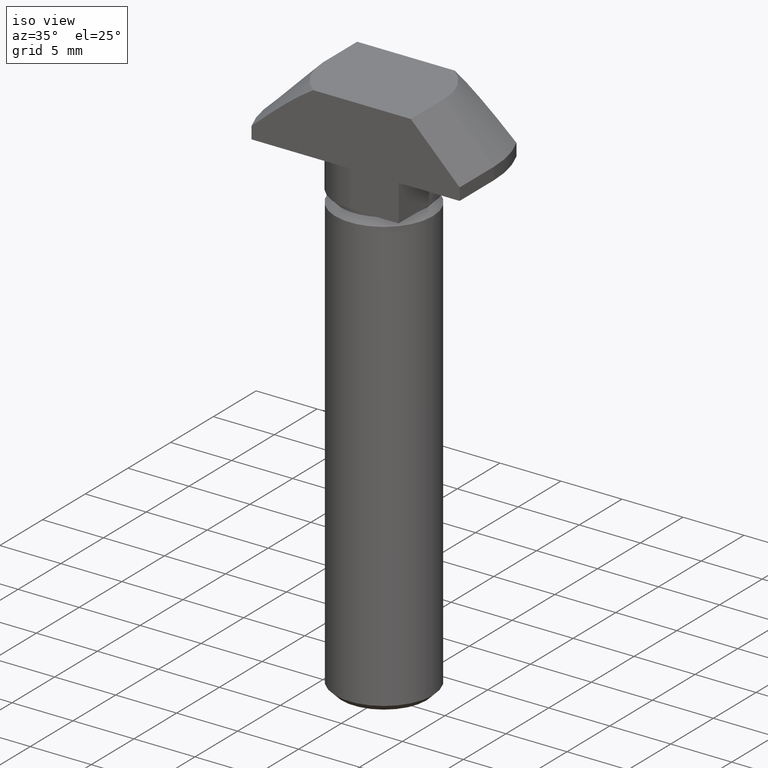
[diagram: clean part render]
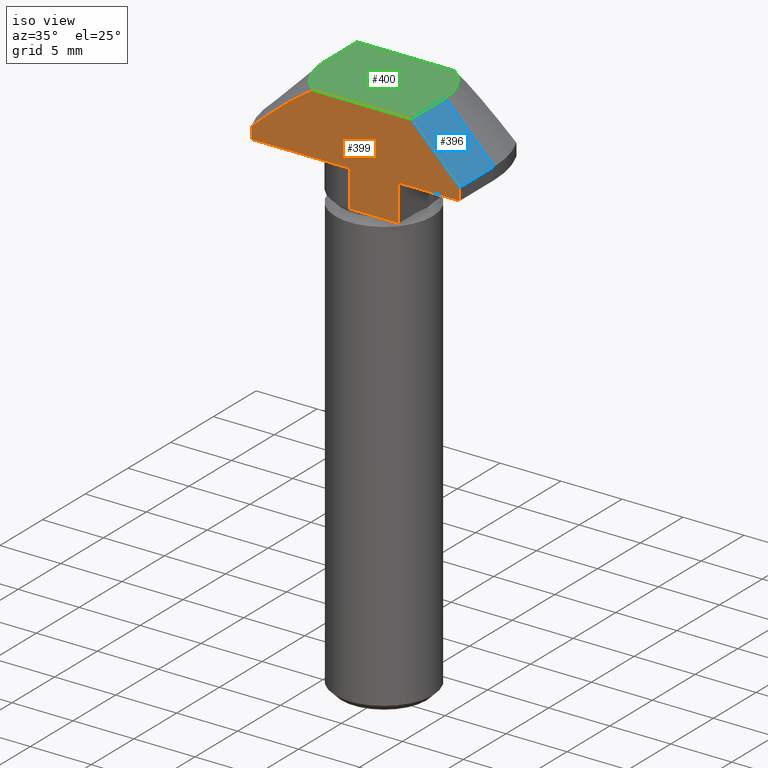
[diagram: same view with three faces highlighted in distinct colors, each labeled with its STEP entity id]
A machine part, iso view with three faces highlighted in distinct colors.
Their STEP definitions:

[orange] entity #399 — the highlighted planar face has unit normal (0, -1, 0).
#16=(
BOUNDED_CURVE()
B_SPLINE_CURVE(2,(#670,#671,#672),.UNSPECIFIED.,.F.,.F.)
B_SPLINE_CURVE_WITH_KNOTS((3,3),(0.,0.645810133031388),.UNSPECIFIED.)
CURVE()
GEOMETRIC_REPRESENTATION_ITEM()
RATIONAL_B_SPLINE_CURVE((1.,1.07257323111155,1.))
REPRESENTATION_ITEM('')
);
#28=PLANE('',#460);
#57=FACE_OUTER_BOUND('',#81,.T.);
#81=EDGE_LOOP('',(#349,#350,#351,#352,#353,#354,#355,#356,#357,#358));
#92=LINE('',#613,#130);
#94=LINE('',#619,#132);
#99=LINE('',#631,#137);
#100=LINE('',#634,#138);
#105=LINE('',#647,#143);
#109=LINE('',#664,#147);
#113=LINE('',#679,#151);
#115=LINE('',#683,#153);
#120=LINE('',#693,#158);
#130=VECTOR('',#501,10.);
#132=VECTOR('',#505,10.);
#137=VECTOR('',#518,10.);
#138=VECTOR('',#521,10.);
#143=VECTOR('',#532,10.);
#147=VECTOR('',#546,10.);
#151=VECTOR('',#558,10.);
#153=VECTOR('',#562,10.);
#158=VECTOR('',#573,10.);
#184=VERTEX_POINT('',#609);
#185=VERTEX_POINT('',#611);
#186=VERTEX_POINT('',#615);
#188=VERTEX_POINT('',#618);
#192=VERTEX_POINT('',#633);
#197=VERTEX_POINT('',#645);
#202=VERTEX_POINT('',#663);
#204=VERTEX_POINT('',#669);
#206=VERTEX_POINT('',#677);
#207=VERTEX_POINT('',#681);
#225=EDGE_CURVE('',#184,#185,#92,.T.);
#227=EDGE_CURVE('',#186,#188,#94,.T.);
#234=EDGE_CURVE('',#188,#185,#99,.T.);
#235=EDGE_CURVE('',#192,#184,#100,.T.);
#242=EDGE_CURVE('',#186,#197,#105,.T.);
#249=EDGE_CURVE('',#202,#192,#109,.T.);
#252=EDGE_CURVE('',#204,#202,#16,.T.);
#256=EDGE_CURVE('',#197,#206,#113,.T.);
#258=EDGE_CURVE('',#206,#207,#115,.T.);
#263=EDGE_CURVE('',#207,#204,#120,.T.);
#349=ORIENTED_EDGE('',*,*,#249,.T.);
#350=ORIENTED_EDGE('',*,*,#235,.T.);
#351=ORIENTED_EDGE('',*,*,#225,.T.);
#352=ORIENTED_EDGE('',*,*,#234,.F.);
#353=ORIENTED_EDGE('',*,*,#227,.F.);
#354=ORIENTED_EDGE('',*,*,#242,.T.);
#355=ORIENTED_EDGE('',*,*,#256,.T.);
#356=ORIENTED_EDGE('',*,*,#258,.T.);
#357=ORIENTED_EDGE('',*,*,#263,.T.);
#358=ORIENTED_EDGE('',*,*,#252,.T.);
#399=ADVANCED_FACE('',(#57),#28,.T.);
#460=AXIS2_PLACEMENT_3D('',#692,#571,#572);
#501=DIRECTION('',(0.,0.,-1.));
#505=DIRECTION('',(0.,0.,-1.));
#518=DIRECTION('',(-1.,3.06161699786838E-16,0.));
#521=DIRECTION('',(1.,0.,0.));
#532=DIRECTION('',(1.,0.,0.));
#546=DIRECTION('',(0.,0.,-1.));
#558=DIRECTION('',(0.,0.,1.));
#562=DIRECTION('',(-0.707106781186547,0.,0.707106781186548));
#571=DIRECTION('center_axis',(0.,-1.,0.));
#572=DIRECTION('ref_axis',(0.,0.,-1.));
#573=DIRECTION('',(-1.,0.,2.04289535270664E-17));
#609=CARTESIAN_POINT('',(0.,-4.00000000000001,-5.));
#611=CARTESIAN_POINT('',(0.,-4.00000000000001,-8.));
#613=CARTESIAN_POINT('',(0.,-4.00000000000001,-5.));
#615=CARTESIAN_POINT('',(3.99999999999999,-4.00000000000001,-5.));
#618=CARTESIAN_POINT('',(3.99999999999999,-4.00000000000001,-8.));
#619=CARTESIAN_POINT('',(3.99999999999999,-4.00000000000001,-5.));
#631=CARTESIAN_POINT('',(0.,-4.00000000000001,-8.));
#633=CARTESIAN_POINT('',(-8.06225774829855,-4.,-5.));
#634=CARTESIAN_POINT('',(-9.,-4.,-5.));
#645=CARTESIAN_POINT('',(9.,-4.,-5.));
#647=CARTESIAN_POINT('',(-9.,-4.,-5.));
#663=CARTESIAN_POINT('',(-8.06225774829855,-4.,-4.));
#664=CARTESIAN_POINT('',(-8.06225774829855,-4.,-4.5));
#669=CARTESIAN_POINT('',(-3.,-4.,3.92523114670944E-16));
#670=CARTESIAN_POINT('Ctrl Pts',(-3.,-4.,2.77555756156289E-16));
#671=CARTESIAN_POINT('Ctrl Pts',(-4.80794919582092,-4.,-1.08476951749255));
#672=CARTESIAN_POINT('Ctrl Pts',(-8.06225774829855,-4.,-4.));
#677=CARTESIAN_POINT('',(9.,-4.,-4.));
#679=CARTESIAN_POINT('',(9.,-4.,-5.));
#681=CARTESIAN_POINT('',(5.,-4.,0.));
#683=CARTESIAN_POINT('',(9.,-4.,-4.));
#692=CARTESIAN_POINT('Origin',(0.,-4.,-2.94399659137253));
#693=CARTESIAN_POINT('',(5.,-4.,1.96261524244674E-16));

[blue] entity #396 — the highlighted planar face has unit normal (0.7071, 0, 0.7071).
#25=PLANE('',#457);
#54=FACE_OUTER_BOUND('',#78,.T.);
#78=EDGE_LOOP('',(#337,#338,#339,#340));
#106=LINE('',#657,#144);
#112=LINE('',#678,#150);
#114=LINE('',#682,#152);
#115=LINE('',#683,#153);
#144=VECTOR('',#537,10.);
#150=VECTOR('',#557,10.);
#152=VECTOR('',#561,10.);
#153=VECTOR('',#562,10.);
#200=VERTEX_POINT('',#654);
#201=VERTEX_POINT('',#656);
#206=VERTEX_POINT('',#677);
#207=VERTEX_POINT('',#681);
#245=EDGE_CURVE('',#200,#201,#106,.T.);
#255=EDGE_CURVE('',#201,#206,#112,.T.);
#257=EDGE_CURVE('',#200,#207,#114,.T.);
#258=EDGE_CURVE('',#206,#207,#115,.T.);
#337=ORIENTED_EDGE('',*,*,#245,.F.);
#338=ORIENTED_EDGE('',*,*,#257,.T.);
#339=ORIENTED_EDGE('',*,*,#258,.F.);
#340=ORIENTED_EDGE('',*,*,#255,.F.);
#396=ADVANCED_FACE('',(#54),#25,.T.);
#457=AXIS2_PLACEMENT_3D('',#680,#559,#560);
#537=DIRECTION('',(0.707106781186547,0.,-0.707106781186548));
#557=DIRECTION('',(0.,-1.,0.));
#559=DIRECTION('center_axis',(0.707106781186548,0.,0.707106781186547));
#560=DIRECTION('ref_axis',(0.707106781186547,0.,-0.707106781186548));
#561=DIRECTION('',(0.,-1.,0.));
#562=DIRECTION('',(-0.707106781186547,0.,0.707106781186548));
#654=CARTESIAN_POINT('',(5.,0.,0.));
#656=CARTESIAN_POINT('',(9.,0.,-4.));
#657=CARTESIAN_POINT('',(7.,0.,-2.));
#677=CARTESIAN_POINT('',(9.,-4.,-4.));
#678=CARTESIAN_POINT('',(9.,0.,-4.));
#680=CARTESIAN_POINT('Origin',(5.,0.,0.));
#681=CARTESIAN_POINT('',(5.,-4.,0.));
#682=CARTESIAN_POINT('',(5.,0.,1.96261524244674E-16));
#683=CARTESIAN_POINT('',(9.,-4.,-4.));

[green] entity #400 — the highlighted planar face has unit normal (0, 0, 1).
#29=PLANE('',#461);
#58=FACE_OUTER_BOUND('',#82,.T.);
#82=EDGE_LOOP('',(#359,#360,#361,#362,#363,#364));
#114=LINE('',#682,#152);
#118=LINE('',#690,#156);
#120=LINE('',#693,#158);
#121=LINE('',#695,#159);
#152=VECTOR('',#561,10.);
#156=VECTOR('',#569,10.);
#158=VECTOR('',#573,10.);
#159=VECTOR('',#576,10.);
#171=CIRCLE('',#449,5.);
#174=CIRCLE('',#455,5.);
#198=VERTEX_POINT('',#649);
#200=VERTEX_POINT('',#654);
#204=VERTEX_POINT('',#669);
#205=VERTEX_POINT('',#673);
#207=VERTEX_POINT('',#681);
#209=VERTEX_POINT('',#689);
#244=EDGE_CURVE('',#200,#198,#171,.T.);
#253=EDGE_CURVE('',#205,#204,#174,.T.);
#257=EDGE_CURVE('',#200,#207,#114,.T.);
#261=EDGE_CURVE('',#209,#205,#118,.T.);
#263=EDGE_CURVE('',#207,#204,#120,.T.);
#264=EDGE_CURVE('',#209,#198,#121,.T.);
#359=ORIENTED_EDGE('',*,*,#244,.T.);
#360=ORIENTED_EDGE('',*,*,#264,.F.);
#361=ORIENTED_EDGE('',*,*,#261,.T.);
#362=ORIENTED_EDGE('',*,*,#253,.T.);
#363=ORIENTED_EDGE('',*,*,#263,.F.);
#364=ORIENTED_EDGE('',*,*,#257,.F.);
#400=ADVANCED_FACE('',(#58),#29,.T.);
#449=AXIS2_PLACEMENT_3D('',#655,#535,#536);
#455=AXIS2_PLACEMENT_3D('',#674,#552,#553);
#461=AXIS2_PLACEMENT_3D('',#694,#574,#575);
#535=DIRECTION('center_axis',(2.04289535270664E-17,0.,1.));
#536=DIRECTION('ref_axis',(1.,0.,0.));
#552=DIRECTION('center_axis',(2.04289535270664E-17,0.,1.));
#553=DIRECTION('ref_axis',(-1.,0.,0.));
#561=DIRECTION('',(0.,-1.,0.));
#569=DIRECTION('',(0.,-1.,0.));
#573=DIRECTION('',(-1.,0.,2.04289535270664E-17));
#574=DIRECTION('center_axis',(2.04289535270664E-17,0.,1.));
#575=DIRECTION('ref_axis',(1.,0.,-2.04289535270664E-17));
#576=DIRECTION('',(1.,0.,-2.04289535270664E-17));
#649=CARTESIAN_POINT('',(3.,4.,0.));
#654=CARTESIAN_POINT('',(5.,0.,0.));
#655=CARTESIAN_POINT('Origin',(0.,0.,2.77555756156289E-16));
#669=CARTESIAN_POINT('',(-3.,-4.,3.92523114670944E-16));
#673=CARTESIAN_POINT('',(-5.,0.,0.));
#674=CARTESIAN_POINT('Origin',(0.,0.,2.77555756156289E-16));
#681=CARTESIAN_POINT('',(5.,-4.,0.));
#682=CARTESIAN_POINT('',(5.,0.,1.96261524244674E-16));
#689=CARTESIAN_POINT('',(-5.,4.,0.));
#690=CARTESIAN_POINT('',(-5.,0.,4.00551059515339E-16));
#693=CARTESIAN_POINT('',(5.,-4.,1.96261524244674E-16));
#694=CARTESIAN_POINT('Origin',(-5.,0.,4.00551059515339E-16));
#695=CARTESIAN_POINT('',(5.,4.,1.96261524244674E-16));